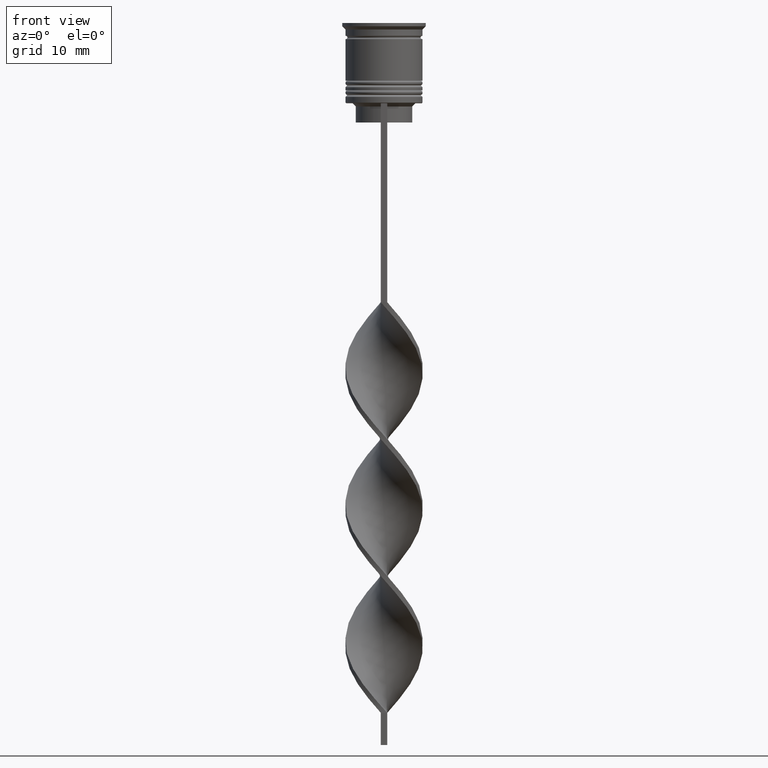
[diagram: clean part render]
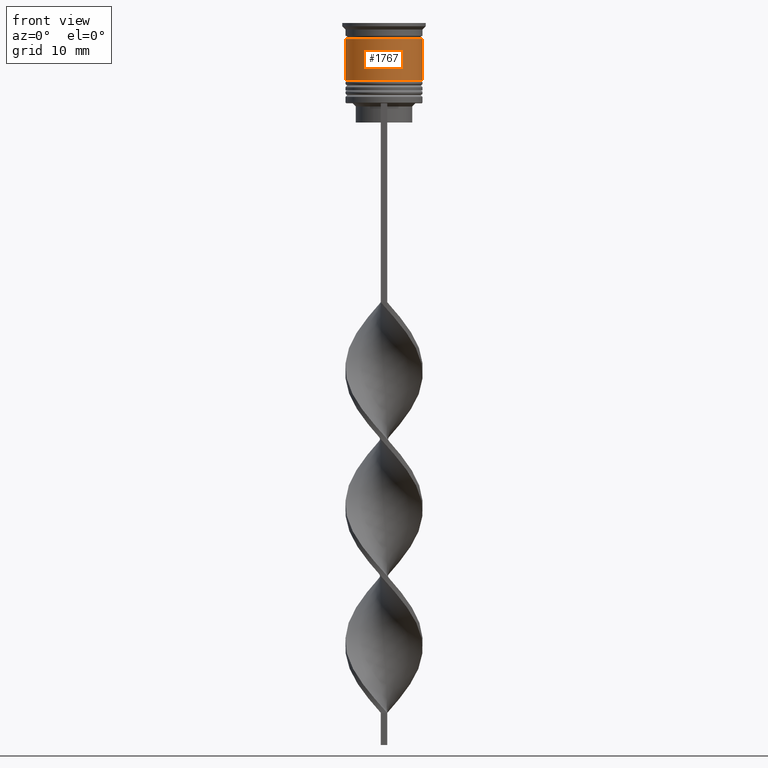
[diagram: same view with one face highlighted and labeled with its STEP entity id]
A machine part, front view. The second image highlights one B-rep face of the part: STEP entity #1767.
In plain terms, the highlighted cylindrical surface (partial cylindrical patch) has radius 6 mm, axis along (-0, -0, 1).
Its self-contained STEP definition (entity closure, byte-faithful):
#212 = EDGE_CURVE ( 'NONE', #500, #1778, #3330, .T. ) ;
#500 = VERTEX_POINT ( 'NONE', #3523 ) ;
#556 = DIRECTION ( 'NONE',  ( -0.000000000000000000, -0.000000000000000000, 1.000000000000000000 ) ) ;
#634 = DIRECTION ( 'NONE',  ( -0.000000000000000000, -0.000000000000000000, 1.000000000000000000 ) ) ;
#671 = LINE ( 'NONE', #2936, #997 ) ;
#706 = EDGE_CURVE ( 'NONE', #3540, #1778, #671, .T. ) ;
#722 = EDGE_LOOP ( 'NONE', ( #979, #2616, #1614, #790 ) ) ;
#790 = ORIENTED_EDGE ( 'NONE', *, *, #212, .F. ) ;
#839 = LINE ( 'NONE', #3369, #2049 ) ;
#875 = AXIS2_PLACEMENT_3D ( 'NONE', #1713, #3421, #2851 ) ;
#979 = ORIENTED_EDGE ( 'NONE', *, *, #1017, .F. ) ;
#997 = VECTOR ( 'NONE', #2435, 1000.000000000000000 ) ;
#1017 = EDGE_CURVE ( 'NONE', #2168, #500, #839, .T. ) ;
#1100 = CIRCLE ( 'NONE', #1913, 6.000000000000000888 ) ;
#1160 = DIRECTION ( 'NONE',  ( -0.000000000000000000, -0.000000000000000000, 1.000000000000000000 ) ) ;
#1185 = DIRECTION ( 'NONE',  ( 1.000000000000000000, 0.000000000000000000, 0.000000000000000000 ) ) ;
#1561 = CARTESIAN_POINT ( 'NONE',  ( -6.000000000000001776, 7.347880794884121708E-16, -9.000000000000001776 ) ) ;
#1614 = ORIENTED_EDGE ( 'NONE', *, *, #706, .T. ) ;
#1617 = AXIS2_PLACEMENT_3D ( 'NONE', #2282, #1160, #2830 ) ;
#1713 = CARTESIAN_POINT ( 'NONE',  ( 0.000000000000000000, 0.000000000000000000, 0.000000000000000000 ) ) ;
#1767 = ADVANCED_FACE ( 'NONE', ( #2586 ), #2301, .T. ) ;
#1778 = VERTEX_POINT ( 'NONE', #2029 ) ;
#1882 = EDGE_CURVE ( 'NONE', #2168, #3540, #1100, .T. ) ;
#1913 = AXIS2_PLACEMENT_3D ( 'NONE', #2599, #634, #1185 ) ;
#2029 = CARTESIAN_POINT ( 'NONE',  ( 5.999999999999999112, 0.000000000000000000, -2.500000000000000444 ) ) ;
#2049 = VECTOR ( 'NONE', #556, 1000.000000000000000 ) ;
#2168 = VERTEX_POINT ( 'NONE', #1561 ) ;
#2282 = CARTESIAN_POINT ( 'NONE',  ( 0.000000000000000000, 0.000000000000000000, -2.500000000000000444 ) ) ;
#2301 = CYLINDRICAL_SURFACE ( 'NONE', #875, 6.000000000000000000 ) ;
#2435 = DIRECTION ( 'NONE',  ( -0.000000000000000000, -0.000000000000000000, 1.000000000000000000 ) ) ;
#2586 = FACE_OUTER_BOUND ( 'NONE', #722, .T. ) ;
#2599 = CARTESIAN_POINT ( 'NONE',  ( 0.000000000000000000, 0.000000000000000000, -9.000000000000001776 ) ) ;
#2616 = ORIENTED_EDGE ( 'NONE', *, *, #1882, .T. ) ;
#2663 = CARTESIAN_POINT ( 'NONE',  ( 6.000000000000000888, 0.000000000000000000, -9.000000000000001776 ) ) ;
#2830 = DIRECTION ( 'NONE',  ( 1.000000000000000000, 0.000000000000000000, 0.000000000000000000 ) ) ;
#2851 = DIRECTION ( 'NONE',  ( 1.000000000000000000, 0.000000000000000000, 0.000000000000000000 ) ) ;
#2936 = CARTESIAN_POINT ( 'NONE',  ( 6.000000000000000000, 0.000000000000000000, 0.000000000000000000 ) ) ;
#3330 = CIRCLE ( 'NONE', #1617, 5.999999999999999112 ) ;
#3369 = CARTESIAN_POINT ( 'NONE',  ( -6.000000000000000000, 7.347880794884119736E-16, 0.000000000000000000 ) ) ;
#3421 = DIRECTION ( 'NONE',  ( -0.000000000000000000, -0.000000000000000000, 1.000000000000000000 ) ) ;
#3523 = CARTESIAN_POINT ( 'NONE',  ( -5.999999999999999112, 7.347880794884118750E-16, -2.500000000000000444 ) ) ;
#3540 = VERTEX_POINT ( 'NONE', #2663 ) ;